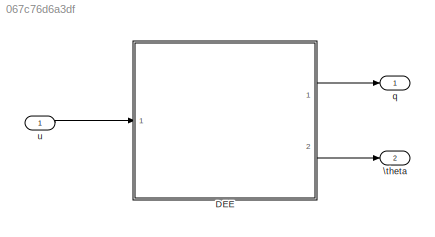
MODEL slx_067c76d6a3df
KIND model
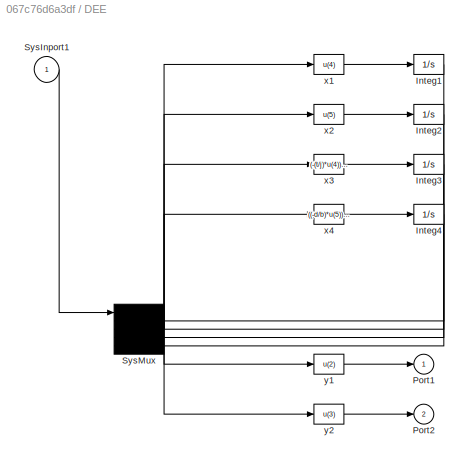
BLOCK [SubSystem] DEE
  FunctionWithSeparateData = off
  MaskHideContents = off
  MinAlgLoopOccurrences = off
  Opaque = off
  OpenFcn = diffeqed
  Ports = [1, 2]
  PropExecContextOutsideSubsystem = off
  RTWSystemCode = Auto
  RequestExecContextInheritance = off
BLOCK [Integrator] DEE/Integ1
  InitialCondition = x0(1)
  Ports = [1, 1]
BLOCK [Integrator] DEE/Integ2
  InitialCondition = x0(2)
  Ports = [1, 1]
BLOCK [Integrator] DEE/Integ3
  InitialCondition = x0(3)
  Ports = [1, 1]
BLOCK [Integrator] DEE/Integ4
  InitialCondition = x0(4)
  Ports = [1, 1]
BLOCK [Outport] DEE/Port1
  IconDisplay = Port number
BLOCK [Outport] DEE/Port2
  IconDisplay = Port number
  Port = 2
BLOCK [Inport] DEE/SysInport1
  IconDisplay = Port number
BLOCK [Mux] DEE/SysMux
  Inputs = 5
  Ports = [5, 1]
BLOCK [Fcn] DEE/x1
  Expr = u(4)
BLOCK [Fcn] DEE/x2
  Expr = u(5)
BLOCK [Fcn] DEE/x3
  Expr = (-(t/j)*u(4))-(k/j)*(u(2)-u(3))-(M*g*l*cos(u(2)))/j
BLOCK [Fcn] DEE/x4
  Expr = ((-d/b)*u(5))-(k/b)*(u(3)-u(2))+u/b
BLOCK [Fcn] DEE/y1
  Expr = u(2)
BLOCK [Fcn] DEE/y2
  Expr = u(3)
BLOCK [Outport] \theta
  IconDisplay = Port number
  Port = 2
BLOCK [Outport] q
  IconDisplay = Port number
BLOCK [Inport] u
  IconDisplay = Port number
LINE DEE/Integ1:1 -> DEE/SysMux:2
LINE DEE/Integ2:1 -> DEE/SysMux:3
LINE DEE/Integ3:1 -> DEE/SysMux:4
LINE DEE/Integ4:1 -> DEE/SysMux:5
LINE DEE/SysInport1:1 -> DEE/SysMux:1
NET DEE/SysMux:1 -> DEE/x1:1, DEE/x2:1, DEE/x3:1, DEE/x4:1, DEE/y1:1, DEE/y2:1
LINE DEE/x1:1 -> DEE/Integ1:1
LINE DEE/x2:1 -> DEE/Integ2:1
LINE DEE/x3:1 -> DEE/Integ3:1
LINE DEE/x4:1 -> DEE/Integ4:1
LINE DEE/y1:1 -> DEE/Port1:1
LINE DEE/y2:1 -> DEE/Port2:1
LINE DEE:1 -> q:1
LINE DEE:2 -> \theta:1
LINE u:1 -> DEE:1
note: NET lines group one-source signal fan-out (src -> all destinations, sorted); 1:1 wires keep LINE
